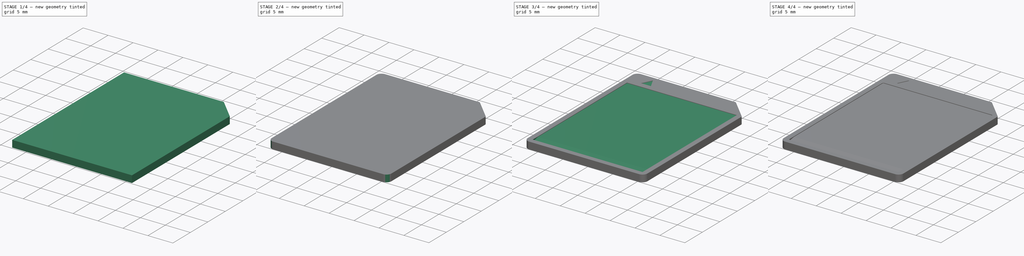
[diagram: build sequence overview — one tinted view per stage of 4, left to right]
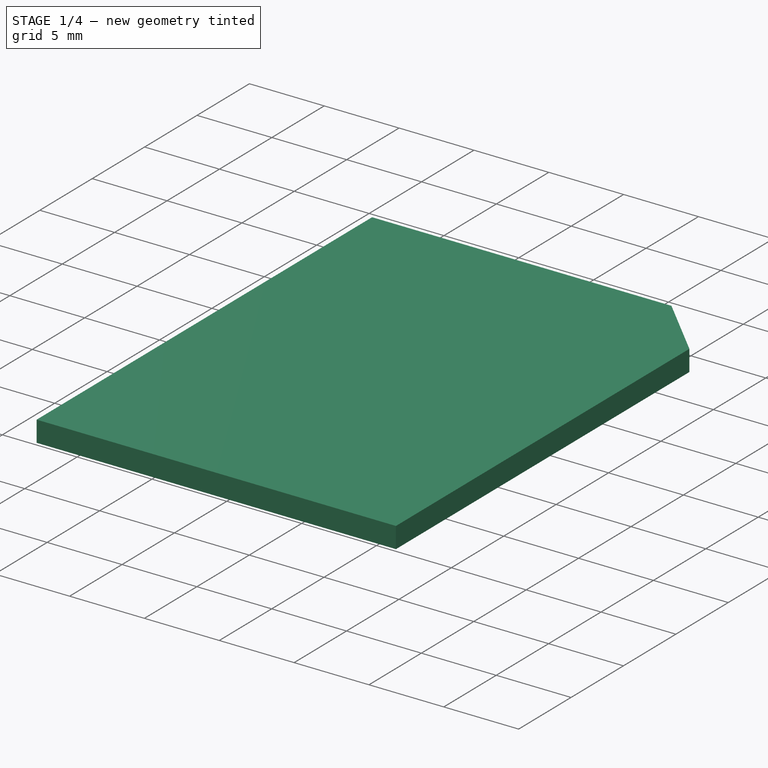
[diagram: stage 1 of 4 — iso view after this stage's code; geometry added in this stage tinted green]
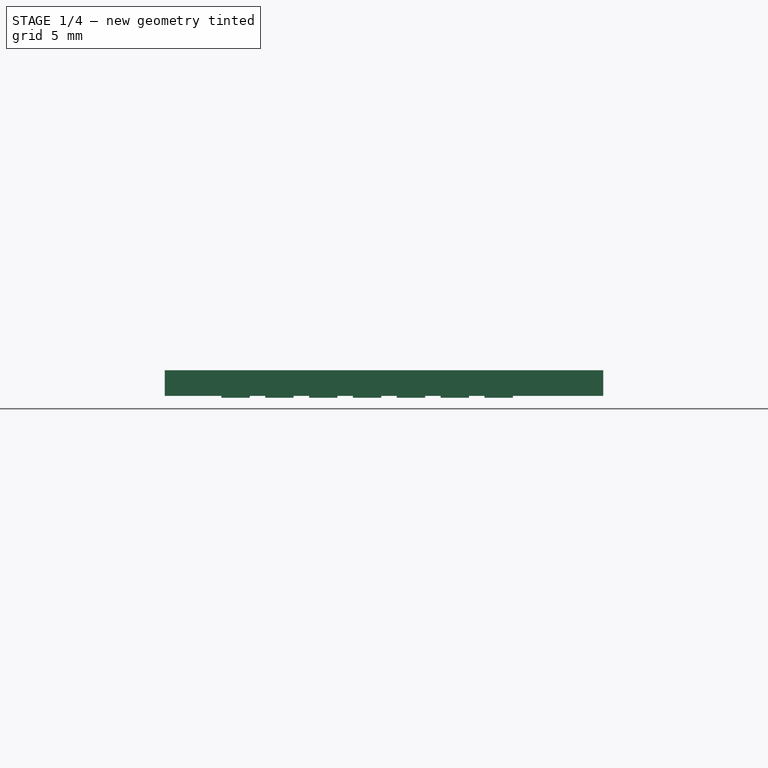
[diagram: stage 1 of 4 — front view after this stage's code; geometry added in this stage tinted green]
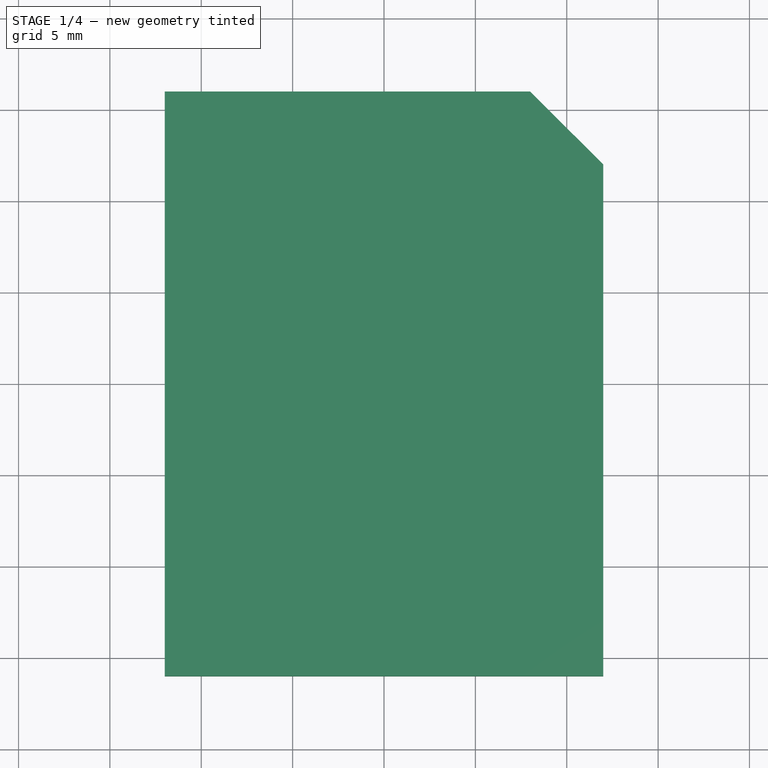
[diagram: stage 1 of 4 — top view after this stage's code; geometry added in this stage tinted green]
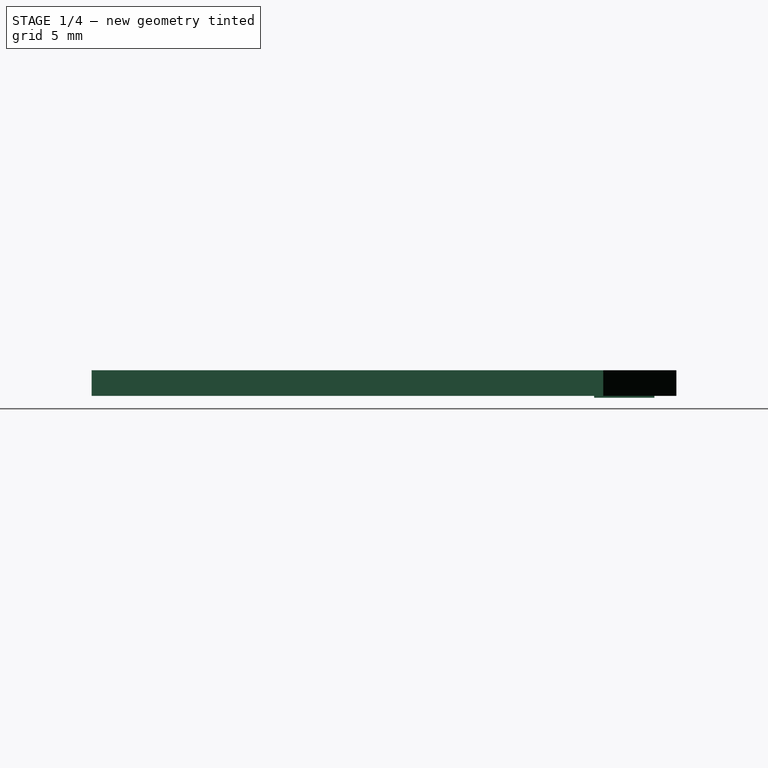
[diagram: stage 1 of 4 — right view after this stage's code; geometry added in this stage tinted green]
FCSTD DOCUMENT  (FreeCAD 0.15R4671 (Git))
Label: SD_card
License: All rights reserved
LicenseURL: http://en.wikipedia.org/wiki/All_rights_reserved
objects: Sketcher::SketchObject×5, Part::Extrusion×5, Part::Cut×4, Part::Fillet×3, Part::FeaturePython×1
note: 18 computed .brp shape members not serialized (recipe doc carries the construction recipe); baked Part::Feature solids carry a one-line shape summary decoded from their .brp

FEATURE [Sketcher::SketchObject] Sketch
  sketch-geometry (6):
    g0: LineSegment StartX=-12 StartY=16 StartZ=0 EndX=8 EndY=16 EndZ=0
    g1: LineSegment StartX=12 StartY=12 StartZ=0 EndX=12 EndY=-16 EndZ=0
    g2: LineSegment StartX=12 StartY=-16 StartZ=0 EndX=-12 EndY=-16 EndZ=0
    g3: LineSegment StartX=-12 StartY=-16 StartZ=0 EndX=-12 EndY=16 EndZ=0
    g4: LineSegment [constr] StartX=-12 StartY=16 StartZ=0 EndX=12 EndY=-16 EndZ=0
    g5: LineSegment StartX=8 StartY=16 StartZ=0 EndX=12 EndY=12 EndZ=0
  constraints (17):
    c: Coincident(g1,g2)
    c: Coincident(g2,g3)
    c: Coincident(g3,g0)
    c: Horizontal(g0)
    c: Horizontal(g2)
    c: Vertical(g1)
    c: Vertical(g3)
    c: Coincident(g4,g0)
    c: Coincident(g1,g4)
    c: PointOnObject(g-1,g4)
    c: DistanceY(g-1,g0) = 16
    c: Coincident(g0,g5)
    c: Coincident(g1,g5)
    c: DistanceX(g0,g1) = 4
    c: DistanceY(g0,g1) = -4
    c: DistanceY(g3) = 32
    c: DistanceX(g2) = -24
FEATURE [Part::Extrusion] Extrude  label="Base"
  Base = -> Sketch
  Dir = (0,0,1.4)
  Solid = true
FEATURE [Sketcher::SketchObject] Sketch006
  Placement = pos=(0,0,0) rot=(1,0,0;3.14159rad)
  sketch-geometry (4):
    g0: LineSegment StartX=-8.9 StartY=-11.5 StartZ=0 EndX=-7.35 EndY=-11.5 EndZ=0
    g1: LineSegment StartX=-7.35 StartY=-11.5 StartZ=0 EndX=-7.35 EndY=-14.8 EndZ=0
    g2: LineSegment StartX=-7.35 StartY=-14.8 StartZ=0 EndX=-8.9 EndY=-14.8 EndZ=0
    g3: LineSegment StartX=-8.9 StartY=-14.8 StartZ=0 EndX=-8.9 EndY=-11.5 EndZ=0
  constraints (12):
    c: Coincident(g0,g1)
    c: Coincident(g1,g2)
    c: Coincident(g2,g3)
    c: Coincident(g3,g0)
    c: Horizontal(g0)
    c: Horizontal(g2)
    c: Vertical(g1)
    c: Vertical(g3)
    c: DistanceY(g3) = 3.3
    c: DistanceY(g-1,g1) = -14.8
    c: DistanceX(g-1,g0) = -8.9
    c: DistanceX(g0) = 1.55
FEATURE [Part::Extrusion] Extrude005  label="Contact"
  Base = -> Sketch006
  Dir = (0,0,-0.1)
  Solid = true
FEATURE [Part::FeaturePython] Array  label="Contacts"  # Draft array (typed FeaturePython)
  Angle = 360
  ArrayType = 0
  Axis = (0,0,1)
  Base = -> Extrude005
  Center = (0,0,0)
  Fuse = false
  IntervalAxis = (0,0,0)
  IntervalX = (2.4,0,0)
  IntervalY = (0,0,0)
  IntervalZ = (0,0,0)
  NumberPolar = 1
  NumberX = 7
  NumberY = 1
  NumberZ = 1
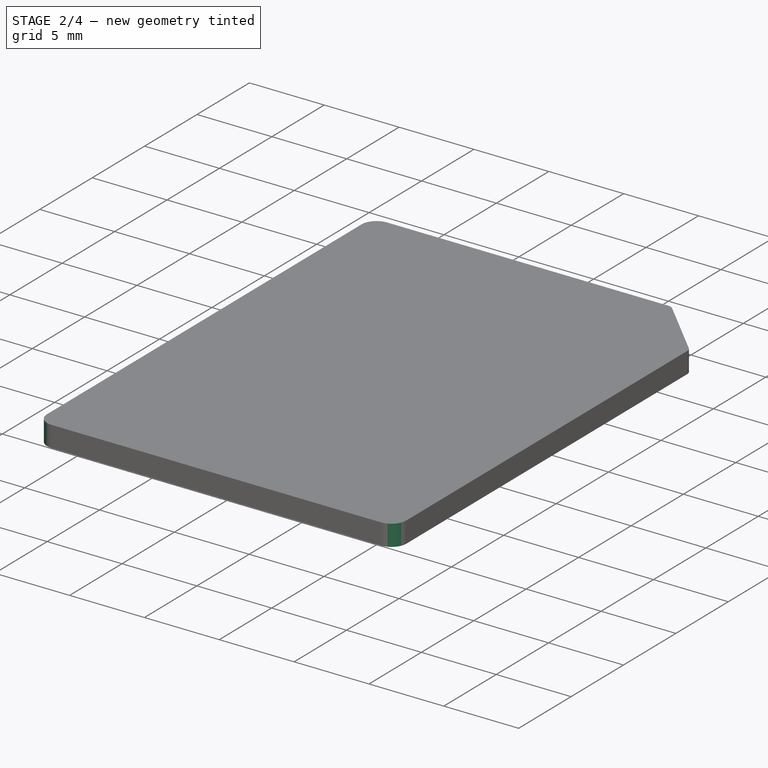
[diagram: stage 2 of 4 — iso view after this stage's code; geometry added in this stage tinted green]
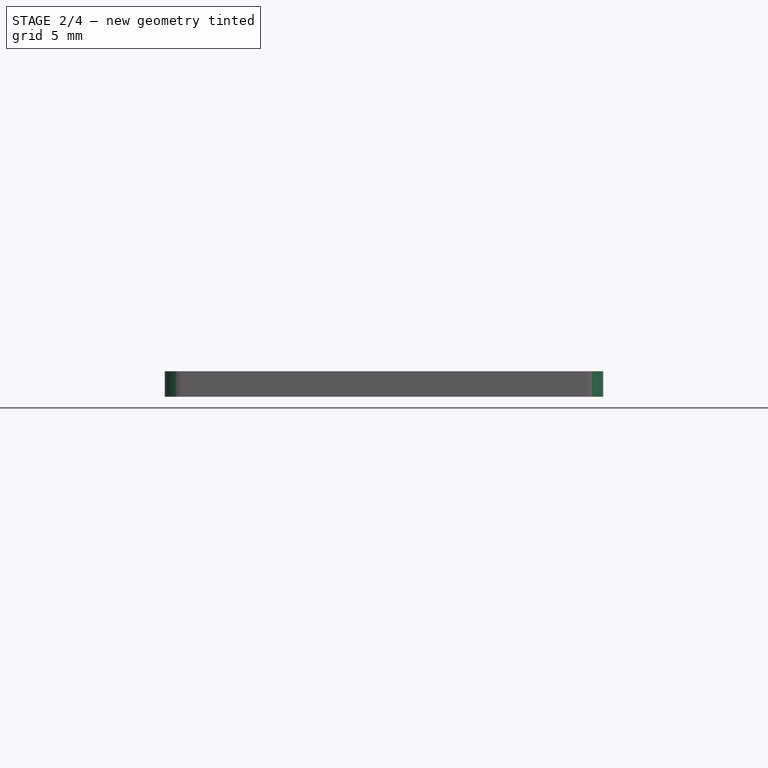
[diagram: stage 2 of 4 — front view after this stage's code; geometry added in this stage tinted green]
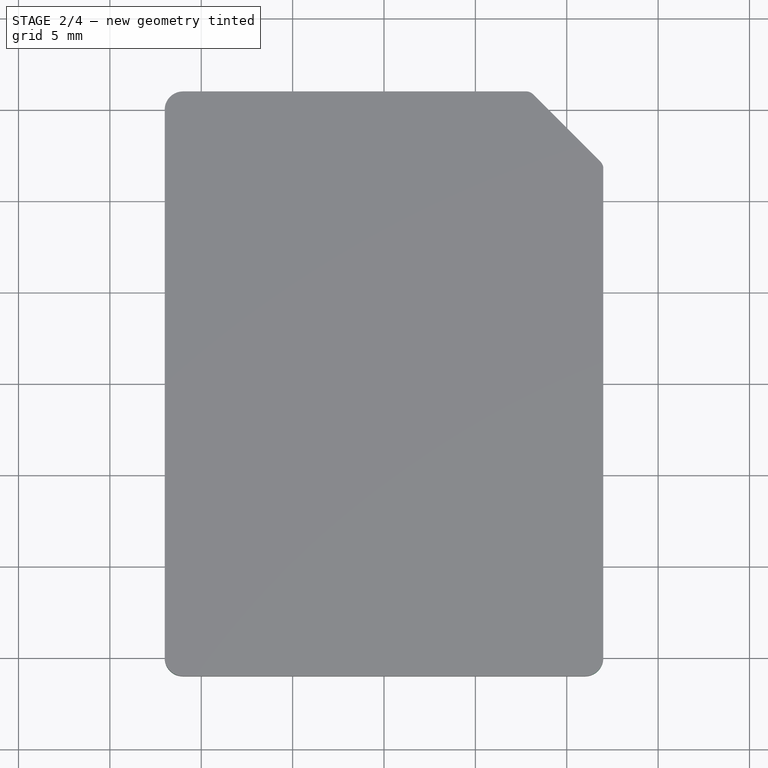
[diagram: stage 2 of 4 — top view after this stage's code; geometry added in this stage tinted green]
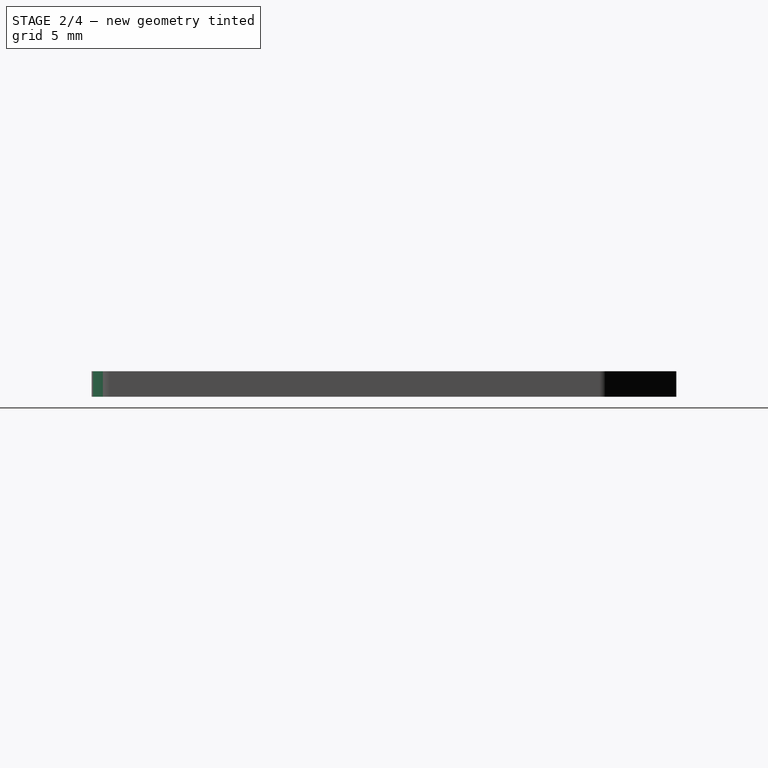
[diagram: stage 2 of 4 — right view after this stage's code; geometry added in this stage tinted green]
FEATURE [Part::Cut] Cut
  Base = -> Extrude
  Tool = -> Array
FEATURE [Part::Fillet] Fillet
  Base = -> Cut
  Edges = 3 edges r=1: [Edge1,Edge5,Edge43]
FEATURE [Part::Fillet] Fillet001  label="Basic SD"
  Base = -> Fillet
  Edges = 2 edges r=0.5: [Edge3,Edge42]
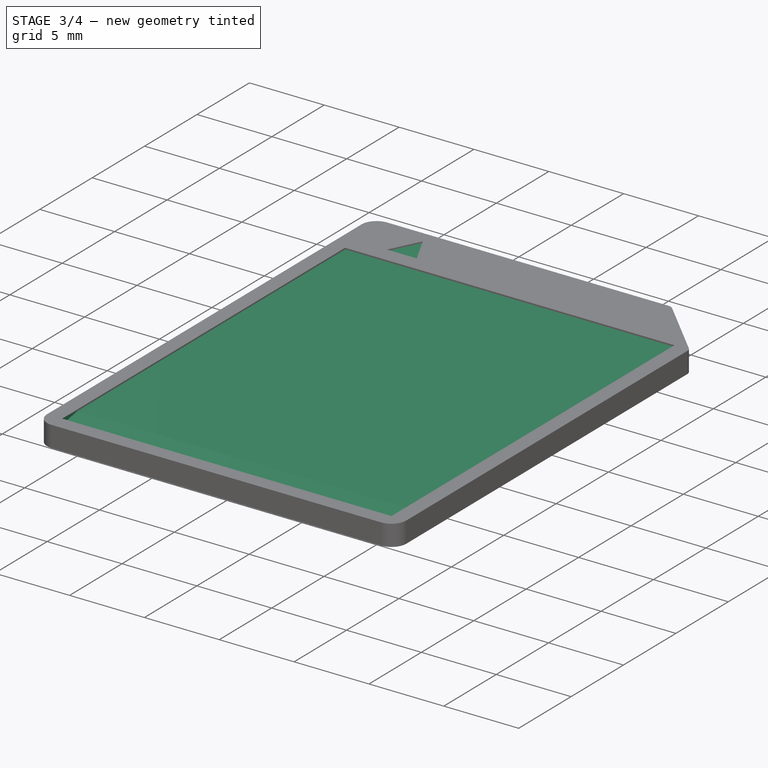
[diagram: stage 3 of 4 — iso view after this stage's code; geometry added in this stage tinted green]
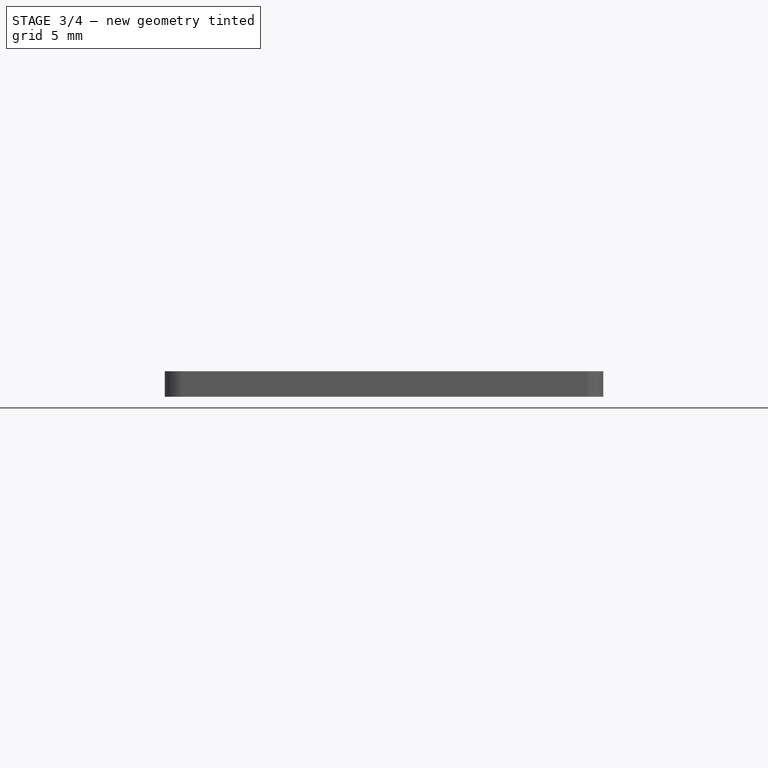
[diagram: stage 3 of 4 — front view after this stage's code; geometry added in this stage tinted green]
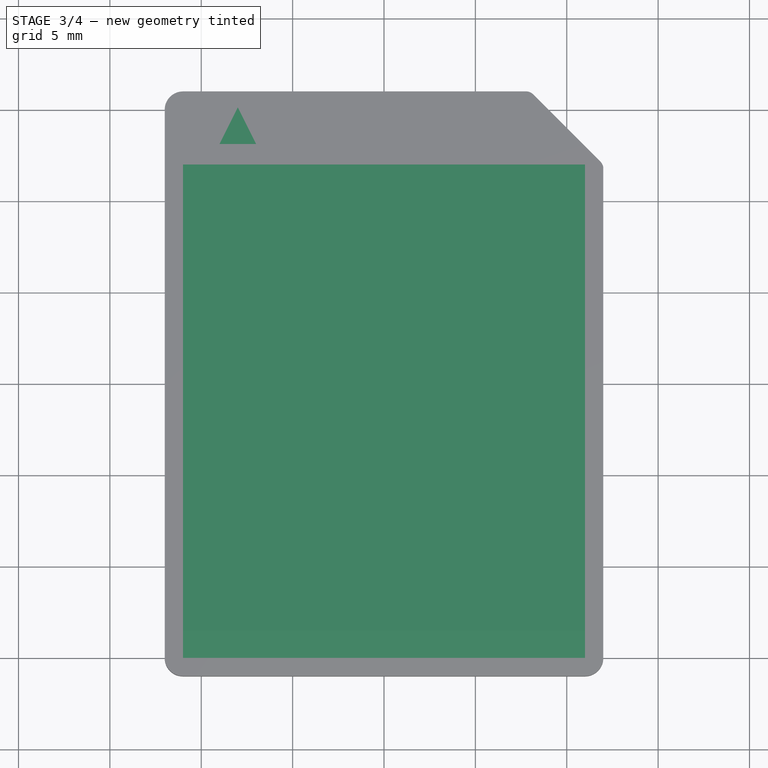
[diagram: stage 3 of 4 — top view after this stage's code; geometry added in this stage tinted green]
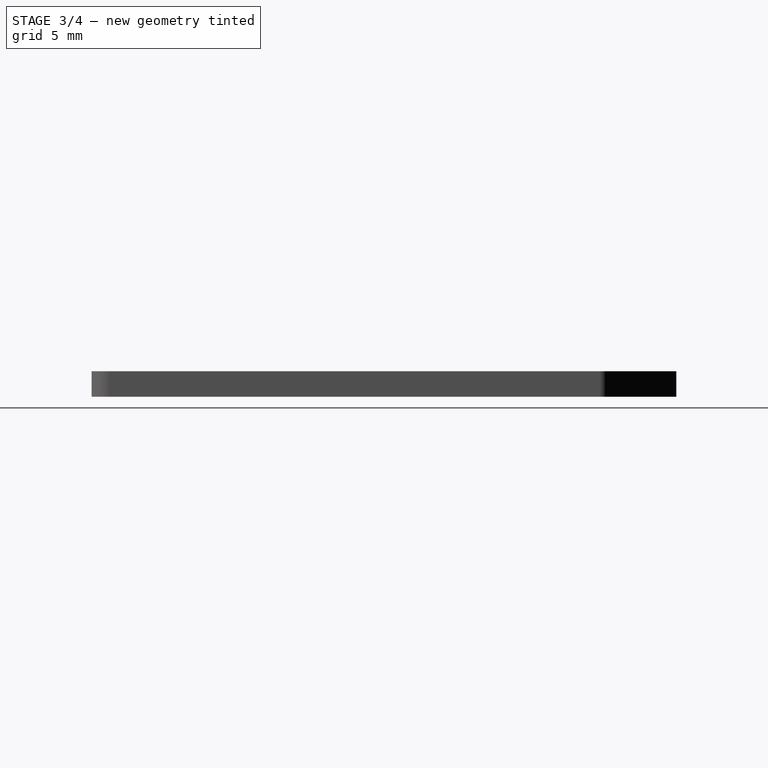
[diagram: stage 3 of 4 — right view after this stage's code; geometry added in this stage tinted green]
FEATURE [Sketcher::SketchObject] Sketch003  label="Sketch002"
  Placement = pos=(0,0,1.4) rot=(0,0,1;0rad)
  sketch-geometry (3):
    g0: LineSegment StartX=-8 StartY=15.1238 StartZ=0 EndX=-9 EndY=13.1238 EndZ=0
    g1: LineSegment StartX=-9 StartY=13.1238 StartZ=0 EndX=-7 EndY=13.1238 EndZ=0
    g2: LineSegment StartX=-7 StartY=13.1238 StartZ=0 EndX=-8 EndY=15.1238 EndZ=0
  constraints (8):
    c: Coincident(g0,g1)
    c: Horizontal(g1)
    c: Coincident(g1,g2)
    c: Coincident(g2,g0)
    c: DistanceX(g1) = 2
    c: Equal(g2,g0)
    c: DistanceX(g-1,g0) = -8
    c: DistanceY(g0,g1) = -2
FEATURE [Part::Extrusion] Extrude002  label="Triangle"
  Base = -> Sketch003
  Dir = (0,0,-0.1)
  Solid = true
FEATURE [Sketcher::SketchObject] Sketch004
  Placement = pos=(0,0,0) rot=(0.57735,0.57735,0.57735;2.0944rad)
  sketch-geometry (5):
    g0: LineSegment StartX=-15 StartY=1.4 StartZ=0 EndX=-15 EndY=1.05 EndZ=0
    g1: LineSegment StartX=-15 StartY=1.05 StartZ=0 EndX=-13.5 EndY=1.3 EndZ=0
    g2: LineSegment StartX=-15 StartY=1.4 StartZ=0 EndX=12 EndY=1.4 EndZ=0
    g3: LineSegment StartX=12 StartY=1.4 StartZ=0 EndX=12 EndY=1.3 EndZ=0
    g4: LineSegment StartX=12 StartY=1.3 StartZ=0 EndX=-13.5 EndY=1.3 EndZ=0
  constraints (15):
    c: Coincident(g0,g1)
    c: Vertical(g0)
    c: DistanceX(g-1,g0) = -15
    c: Coincident(g0,g2)
    c: Horizontal(g2)
    c: Coincident(g2,g3)
    c: Coincident(g3,g4)
    c: Coincident(g1,g4)
    c: Horizontal(g4)
    c: Vertical(g3)
    c: DistanceX(g2) = 27
    c: DistanceX(g1,g0) = -1.5
    c: DistanceY(g3) = -0.1
    c: DistanceY(g0) = -0.35
    c: DistanceY(g-1,g0) = 1.4
FEATURE [Part::Extrusion] Extrude003  label="Front"
  Base = -> Sketch004
  Dir = (22,0,0)
  Placement = pos=(-11,0,0) rot=(0,0,1;0rad)
  Solid = true
FEATURE [Part::Cut] Cut001
  Base = -> Fillet001
  Tool = -> Extrude003
FEATURE [Part::Cut] Cut002
  Base = -> Cut001
  Tool = -> Extrude002
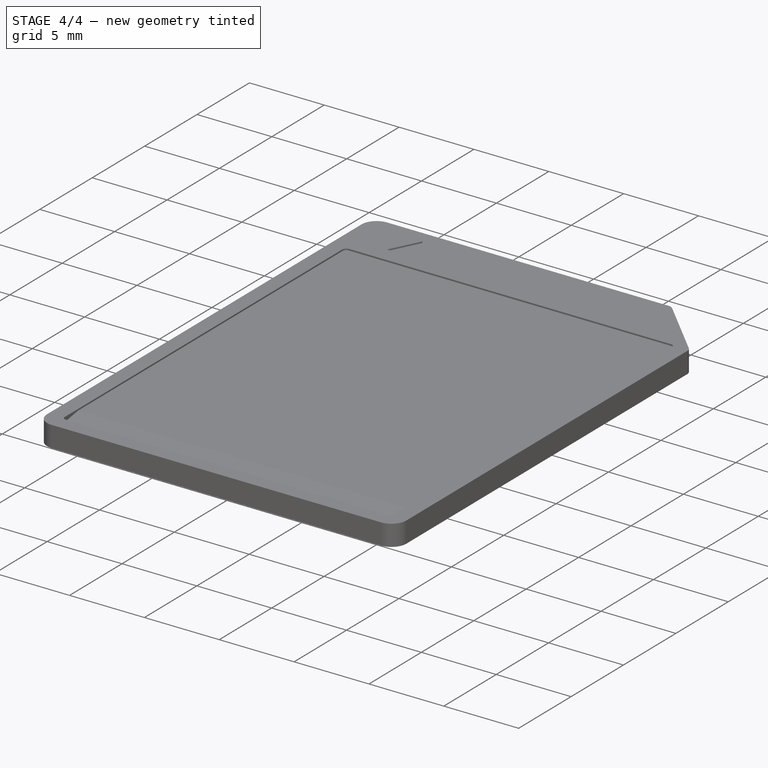
[diagram: stage 4 of 4 — iso view after this stage's code; geometry added in this stage tinted green]
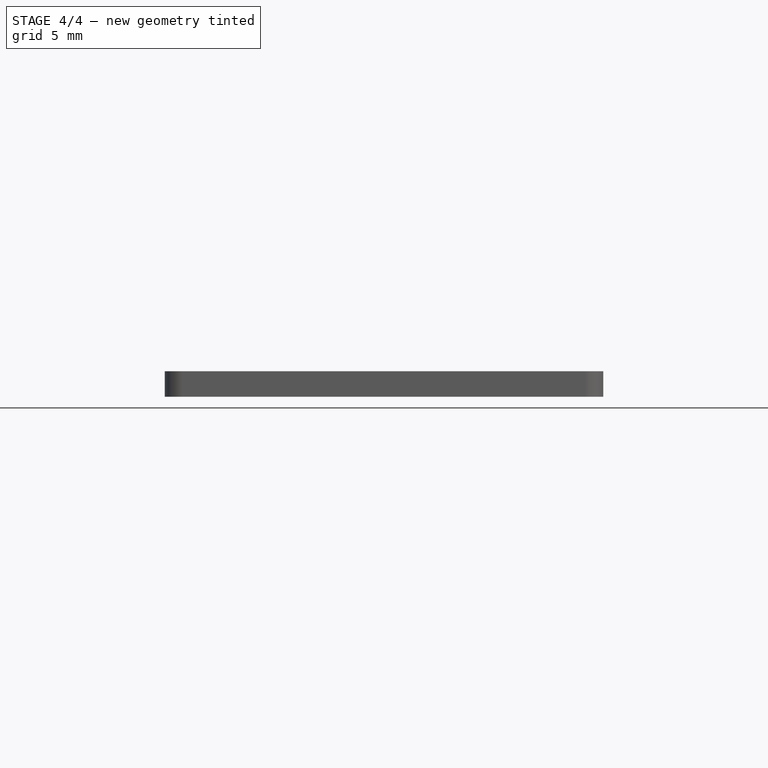
[diagram: stage 4 of 4 — front view after this stage's code; geometry added in this stage tinted green]
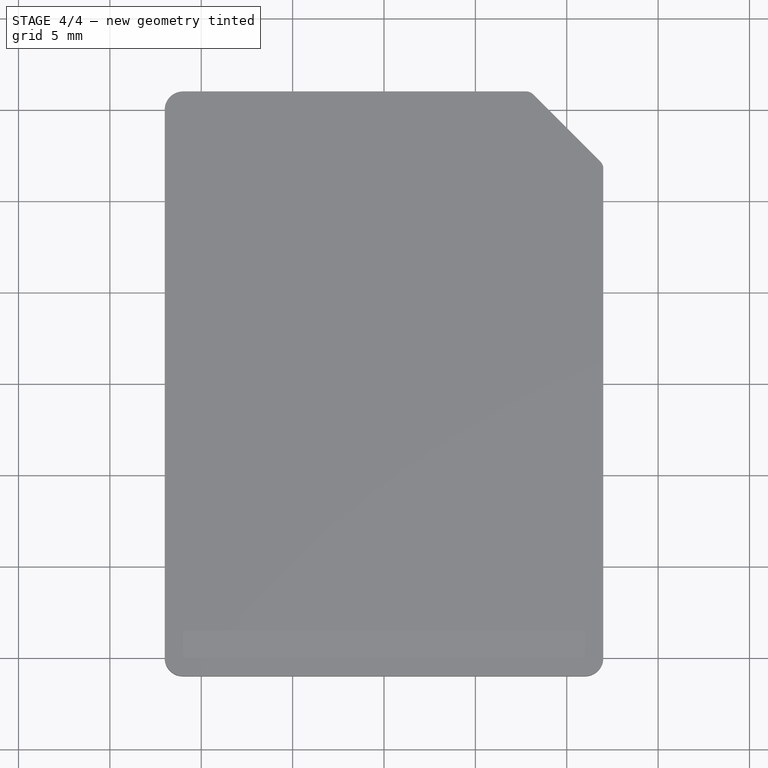
[diagram: stage 4 of 4 — top view after this stage's code; geometry added in this stage tinted green]
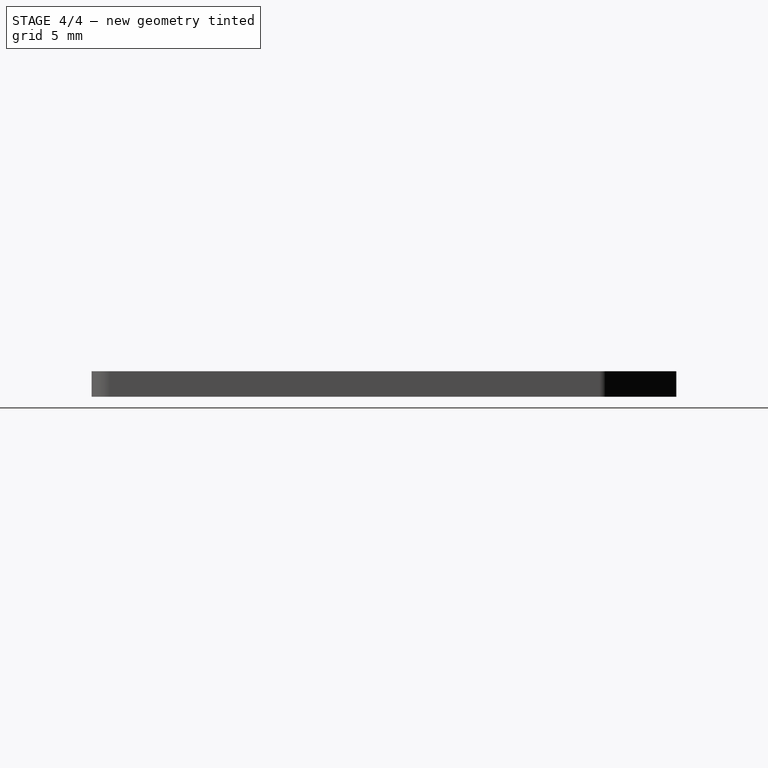
[diagram: stage 4 of 4 — right view after this stage's code; geometry added in this stage tinted green]
FEATURE [Sketcher::SketchObject] Sketch005
  Placement = pos=(-11,0,0) rot=(0.57735,0.57735,0.57735;2.0944rad)
  sketch-geometry (3):
    g0: LineSegment StartX=-15 StartY=0.25 StartZ=0 EndX=-15 EndY=0 EndZ=0
    g1: LineSegment StartX=-15 StartY=0 StartZ=0 EndX=-13.5 EndY=0 EndZ=0
    g2: LineSegment StartX=-13.5 StartY=0 StartZ=0 EndX=-15 EndY=0.25 EndZ=0
  constraints (9):
    c: Coincident(g0,g1)
    c: Coincident(g1,g2)
    c: Coincident(g2,g0)
    c: Horizontal(g1)
    c: PointOnObject(g-1,g1)
    c: Vertical(g0)
    c: DistanceX(g1) = 1.5
    c: DistanceY(g0) = -0.25
    c: DistanceX(g-1,g0) = -15
FEATURE [Part::Extrusion] Extrude004  label="Back"
  Base = -> Sketch005
  Dir = (22,0,0)
  Solid = true
FEATURE [Part::Cut] Cut003
  Base = -> Cut002
  Tool = -> Extrude004
FEATURE [Part::Fillet] Fillet002
  Base = -> Cut003
  Edges = 4 edges r=0.25: [Edge81,Edge83,Edge85,Edge87]
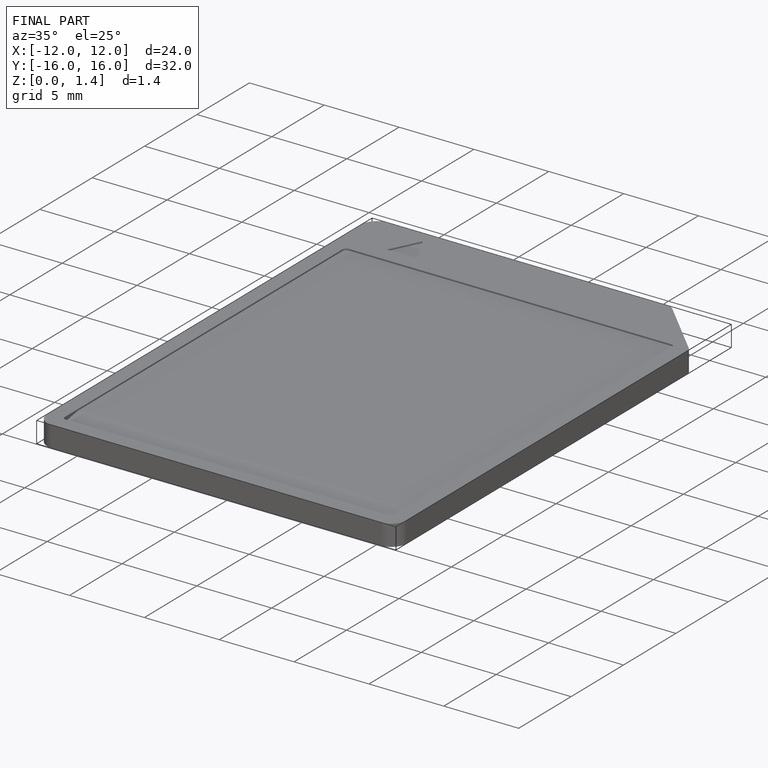
[diagram: finished part — iso view with bounding-box wireframe]
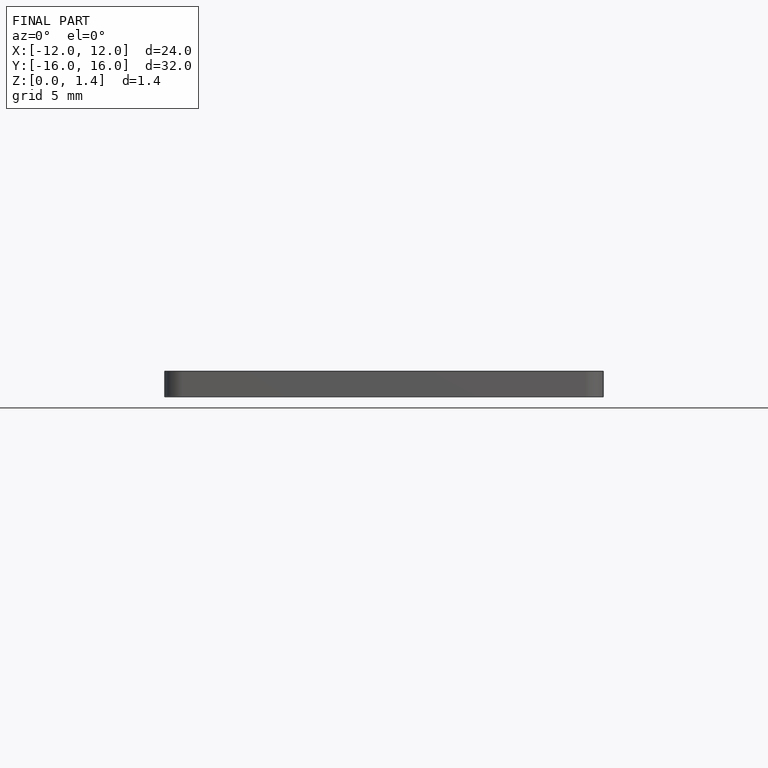
[diagram: finished part — front view with bounding-box wireframe]
